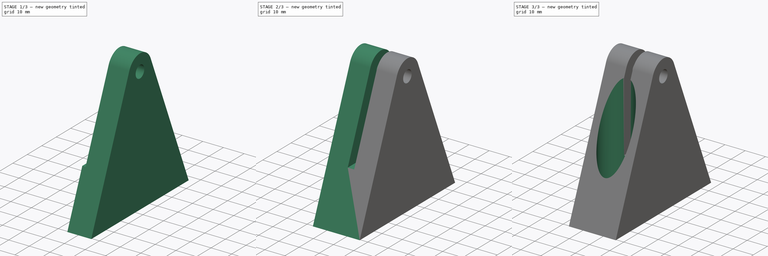
[diagram: build sequence overview — one tinted view per stage of 3, left to right]
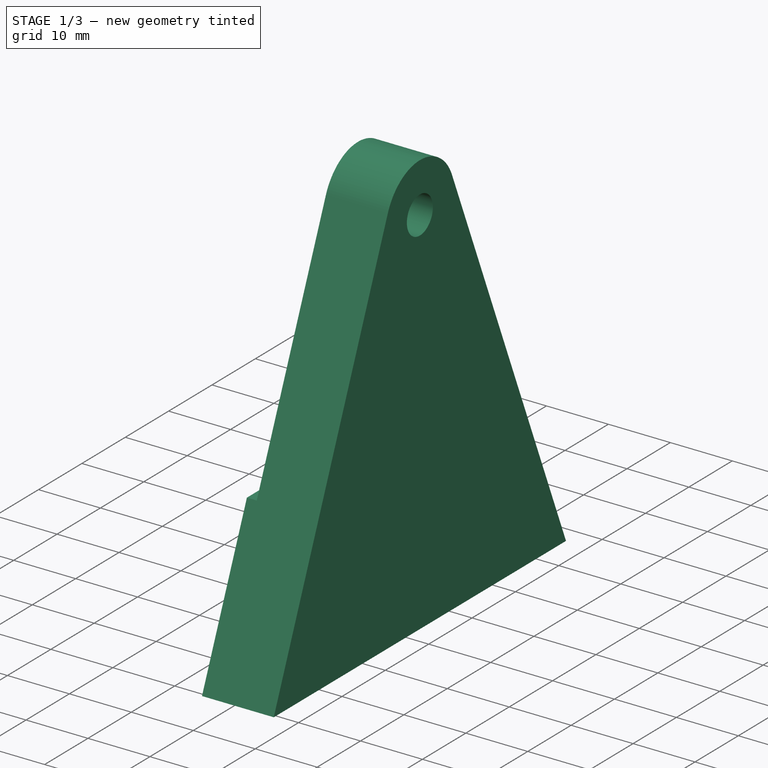
[diagram: stage 1 of 3 — iso view after this stage's code; geometry added in this stage tinted green]
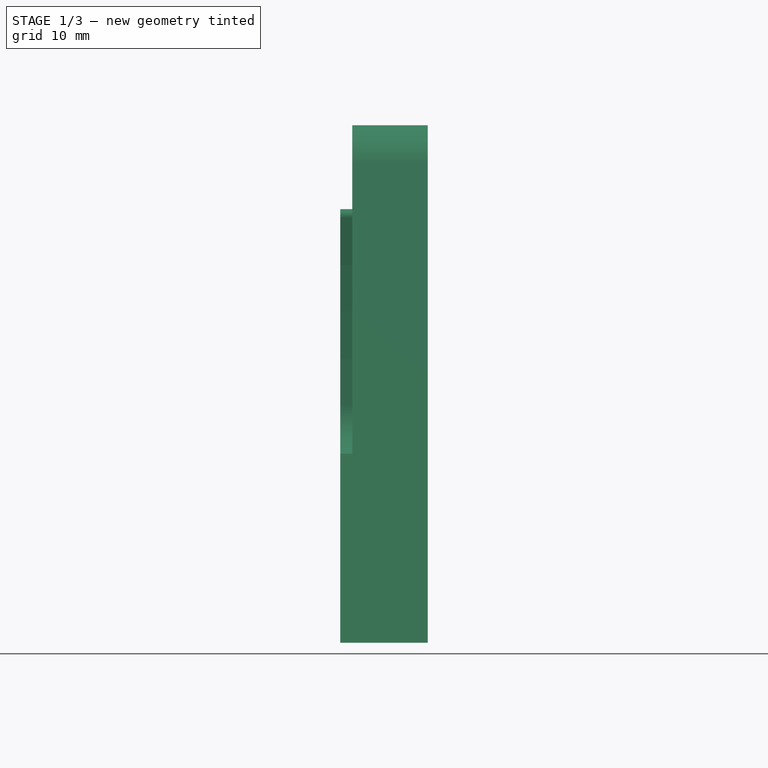
[diagram: stage 1 of 3 — front view after this stage's code; geometry added in this stage tinted green]
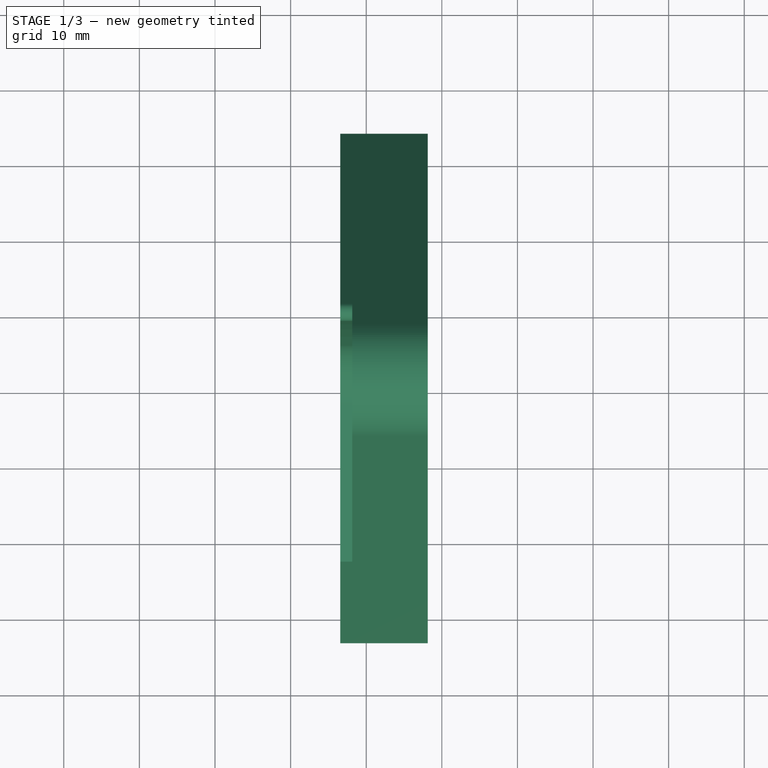
[diagram: stage 1 of 3 — top view after this stage's code; geometry added in this stage tinted green]
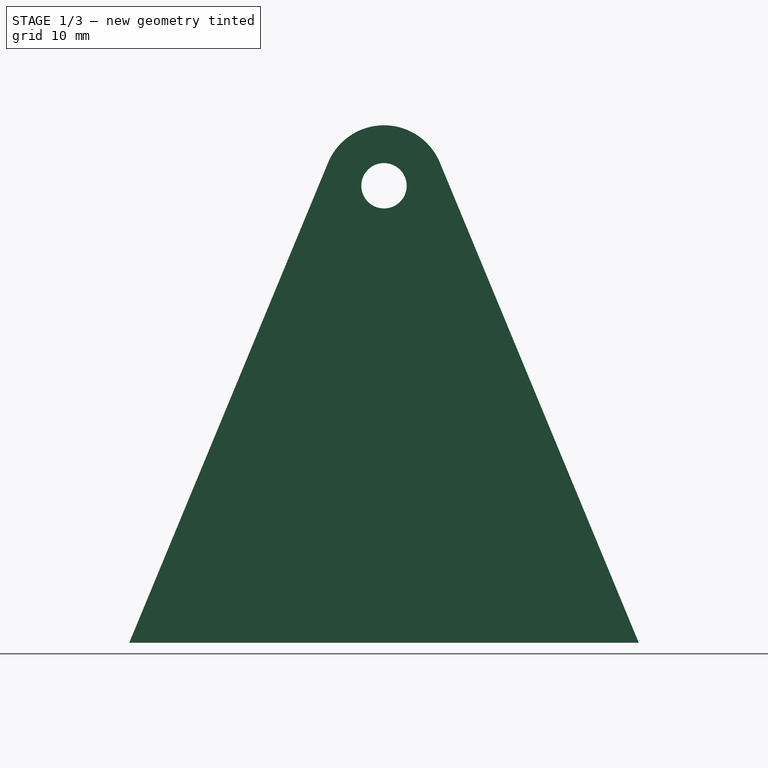
[diagram: stage 1 of 3 — right view after this stage's code; geometry added in this stage tinted green]
FCSTD DOCUMENT  (FreeCAD 1.0R38641 +468 (Git))
Label: mount_3d_printed
License: All rights reserved
LicenseURL: https://en.wikipedia.org/wiki/All_rights_reserved
objects: Sketcher::SketchObject×4, PartDesign::Pad×2, PartDesign::Pocket×2, PartDesign::SubShapeBinder×1, PartDesign::Plane×1, PartDesign::Mirrored×1, PartDesign::Body×1
note: 25 computed .brp shape members not serialized (recipe doc carries the construction recipe); baked Part::Feature solids carry a one-line shape summary decoded from their .brp
EXTERNAL_REF file=../frame_bracket.FCStd obj=Body
EXTERNAL_REF file=../dimensions.FCStd obj=VarSet

FEATURE [PartDesign::SubShapeBinder] Binder  label="FrameBracketBinder"
  BindCopyOnChange = 0
  BindMode = 0
  ClaimChildren = false
  Context = -> Body [Binder.]
  Fuse = false
  MakeFace = true
  OffsetFill = false
  OffsetIntersection = false
  OffsetJoinType = 0
  OffsetOpenResult = false
  PartialLoad = false
  Refine = true
  Relative = true
  Support = -> [<external ../frame_bracket.FCStd>#Body]
  _Version = 2
FEATURE [PartDesign::Plane] DatumPlane
  AttachmentSupport = -> [Binder]
  Length = 346.629
  MapMode = 45
  Placement = pos=(-3.4417,72.5692,-65.5158) rot=(0.680981,0.269315,0.680981;2.61545rad)
  ResizeMode = 0
  Width = 346.182
FEATURE [Sketcher::SketchObject] Sketch
  ArcFitTolerance = 1e-06
  AttachmentSupport = -> [Binder]
  ExternalGeometry = -> [Binder]
  FullyConstrained = true
  MakeInternals = false
  MapMode = 5
  Placement = pos=(-1.8542,0,0) rot=(0.57735,0.57735,0.57735;2.0944rad)
  expr: Constraints[13] = 2 * dimensions#VarSet.MaxAngle
  sketch-geometry (10):
    g0: LineSegment StartX=117.29 StartY=-159.135 StartZ=0 EndX=133.236 EndY=-120.639 EndZ=0
    g1: ArcOfCircle CenterX=140.627 CenterY=-123.7 CenterZ=0 NormalX=0 NormalY=0 NormalZ=1 AngleXU=0 Radius=8 StartAngle=0.392699 EndAngle=2.74889
    g2: LineSegment [constr] StartX=137.627 StartY=-123.7 StartZ=0 EndX=140.627 EndY=-123.7 EndZ=0
    g3: LineSegment [constr] StartX=117.29 StartY=-159.135 StartZ=0 EndX=163.964 EndY=-159.135 EndZ=0
    g4: LineSegment StartX=148.018 StartY=-120.639 StartZ=0 EndX=163.964 EndY=-159.135 EndZ=0
    g5: LineSegment [constr] StartX=140.627 StartY=-159.135 StartZ=0 EndX=140.627 EndY=-123.7 EndZ=0
    g6: Circle CenterX=140.627 CenterY=-123.7 CenterZ=0 NormalX=0 NormalY=0 NormalZ=1 AngleXU=0 Radius=3
    g7: LineSegment StartX=117.29 StartY=-159.135 StartZ=0 EndX=106.935 EndY=-184.135 EndZ=0
    g8: LineSegment StartX=163.964 StartY=-159.135 StartZ=0 EndX=174.319 EndY=-184.135 EndZ=0
    g9: LineSegment StartX=106.935 StartY=-184.135 StartZ=0 EndX=174.319 EndY=-184.135 EndZ=0
  constraints (24):
    c: Tangent(g1,g0) = 1.5708
    c: Coincident(g2,g1)
    c: Coincident(g1,g-3)
    c: Coincident(g3,g0)
    c: Tangent(g3,g-4)
    c: Equal(g1,g-6)
    c: Tangent(g4,g1) = 1.5708
    c: Coincident(g3,g4)
    c: Symmetric(g3,g3,g5)
    c: Coincident(g5,g1)
    c: Perpendicular(g2,g5)
    c: Perpendicular(g5,g3)
    c: Coincident(g2,g-3)
    c: Angle(g0,g4) = 0.785398
    c: Coincident(g6,g1)
    c: PointOnObject(g-3,g6)
    c: Coincident(g7,g0)
    c: Coincident(g8,g3)
    c: Coincident(g9,g7)
    c: Coincident(g9,g8)
    c: Parallel(g9,g3)
    c: Parallel(g7,g0)
    c: Parallel(g4,g8)
    c: Distance(g9,g3) = 25
FEATURE [PartDesign::Pad] Pad
  Direction = (1,0,0)
  Length = 10
  Length2 = 10
  Profile = -> Sketch
  ReferenceAxis = -> Sketch [N_Axis]
  Refine = true
  Suppressed = false
  Type = 0
FEATURE [Sketcher::SketchObject] Sketch004
  ArcFitTolerance = 1e-06
  ExternalGeometry = -> [Binder,Sketch]
  FullyConstrained = true
  MakeInternals = false
  MapMode = 5
  Placement = pos=(-1.8542,0,0) rot=(0.57735,-0.57735,-0.57735;2.0944rad)
  expr: Constraints[6] = dimensions#VarSet.EnclosureCornerRadius
  sketch-geometry (7):
    g0: ArcOfCircle CenterX=0 CenterY=-123.7 CenterZ=0 NormalX=0 NormalY=0 NormalZ=1 AngleXU=0 Radius=148.627 StartAngle=3.17025 EndAngle=3.33794
    g1: ArcOfCircle CenterX=-137.925 CenterY=-151.135 CenterZ=0 NormalX=0 NormalY=0 NormalZ=1 AngleXU=0 Radius=8 StartAngle=3.33794 EndAngle=4.71239
    g2: ArcOfCircle CenterX=-149.765 CenterY=-127.993 CenterZ=0 NormalX=0 NormalY=0 NormalZ=1 AngleXU=0 Radius=1.2 StartAngle=0.0286569 EndAngle=2.74889
    g3: LineSegment StartX=-137.925 StartY=-159.135 StartZ=0 EndX=-117.29 EndY=-159.135 EndZ=0
    g4: LineSegment StartX=-117.29 StartY=-159.135 StartZ=0 EndX=-106.935 EndY=-184.135 EndZ=0
    g5: LineSegment StartX=-106.935 StartY=-184.135 StartZ=0 EndX=-174.319 EndY=-184.135 EndZ=0
    g6: LineSegment StartX=-174.319 StartY=-184.135 StartZ=0 EndX=-150.874 EndY=-127.534 EndZ=0
  constraints (18):
    c: PointOnObject(g0,g-2)
    c: Coincident(g0,g-4)
    c: PointOnObject(g0,g-3)
    c: Coincident(g1,g0)
    c: Equal(g1,g-4)
    c: Tangent(g2,g0) = 1.5708
    c: Radius(g2) = 1.2
    c: Coincident(g3,g1)
    c: Coincident(g3,g-10)
    c: Horizontal(g3)
    c: Coincident(g4,g3)
    c: Coincident(g4,g-10)
    c: Coincident(g5,g4)
    c: Coincident(g5,g-9)
    c: Coincident(g6,g5)
    c: PointOnObject(g6,g-7)
    c: Tangent(g6,g2) = 1.5708
    c: PointOnObject(g1,g-4)
FEATURE [PartDesign::Pad] Pad004
  BaseFeature = -> Pad
  Direction = (-1,0,0)
  Length = 10
  Length2 = 10
  Profile = -> Sketch004
  ReferenceAxis = -> Sketch004 [N_Axis]
  Refine = true
  Suppressed = false
  Type = 3
  UpToFace = -> DatumPlane
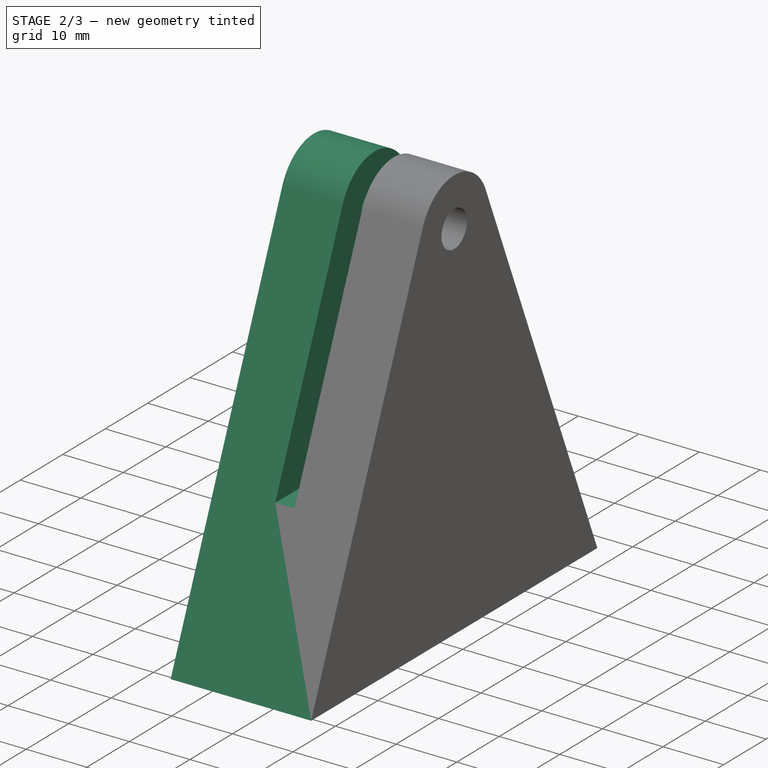
[diagram: stage 2 of 3 — iso view after this stage's code; geometry added in this stage tinted green]
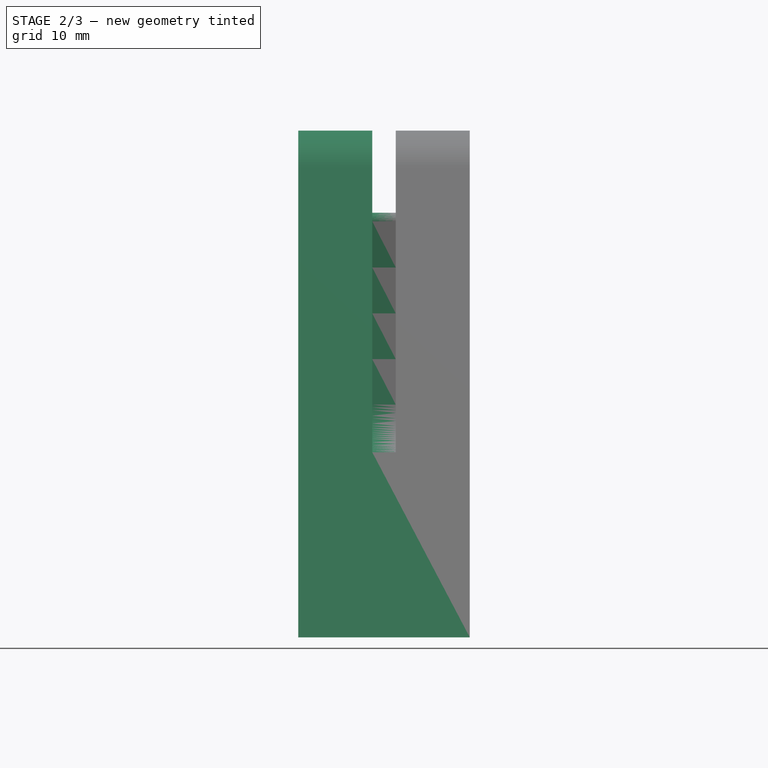
[diagram: stage 2 of 3 — front view after this stage's code; geometry added in this stage tinted green]
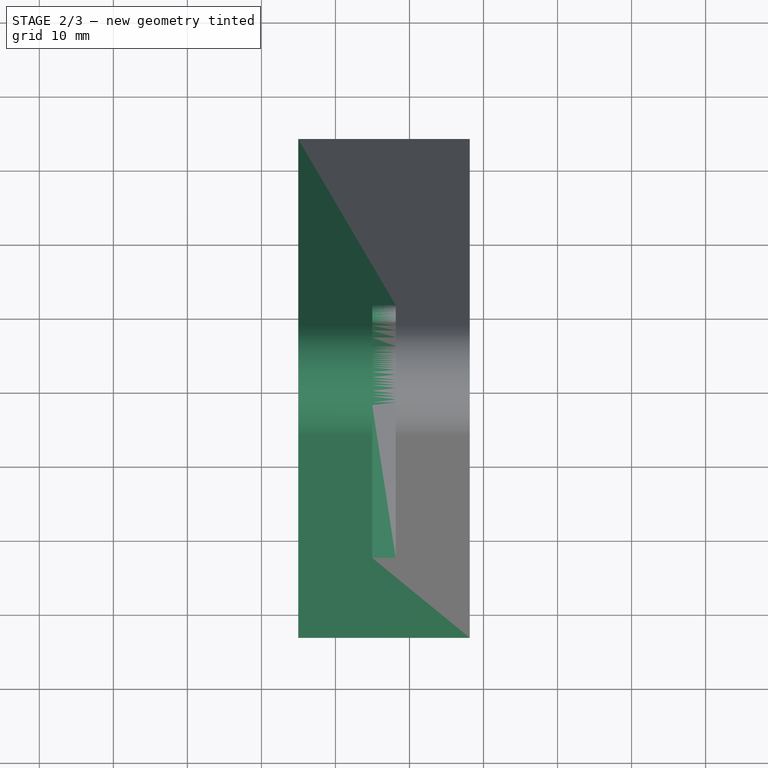
[diagram: stage 2 of 3 — top view after this stage's code; geometry added in this stage tinted green]
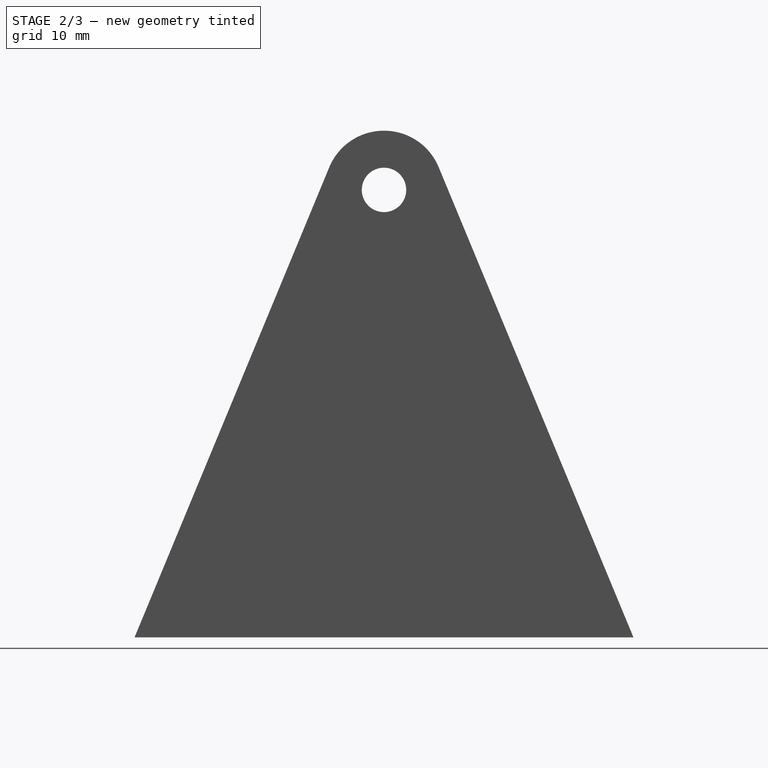
[diagram: stage 2 of 3 — right view after this stage's code; geometry added in this stage tinted green]
FEATURE [PartDesign::Mirrored] Mirrored
  BaseFeature = -> Pad004
  MirrorPlane = -> DatumPlane
  Originals = -> [Pad004]
  Refine = true
  Suppressed = false
  TransformMode = 1
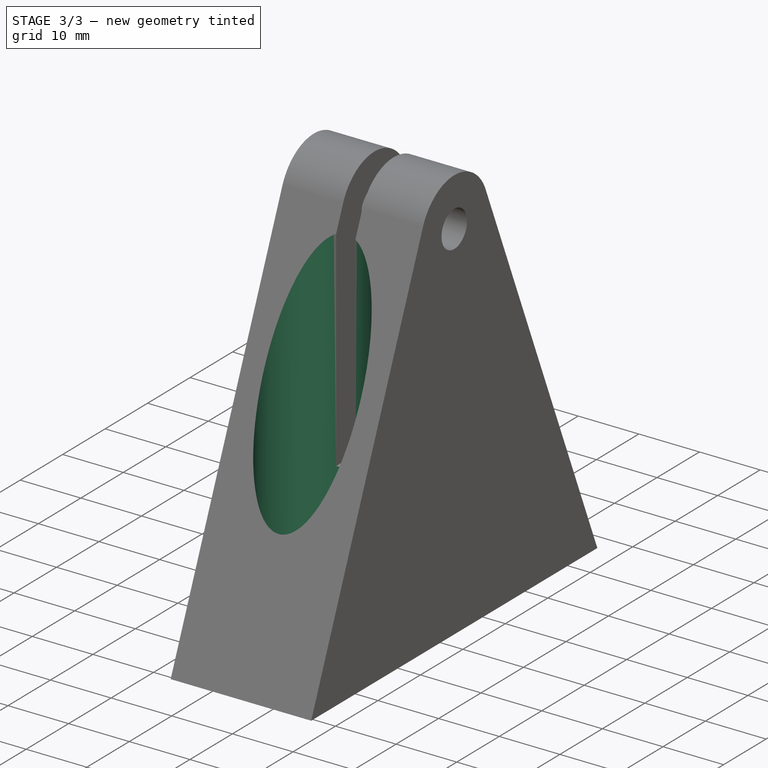
[diagram: stage 3 of 3 — iso view after this stage's code; geometry added in this stage tinted green]
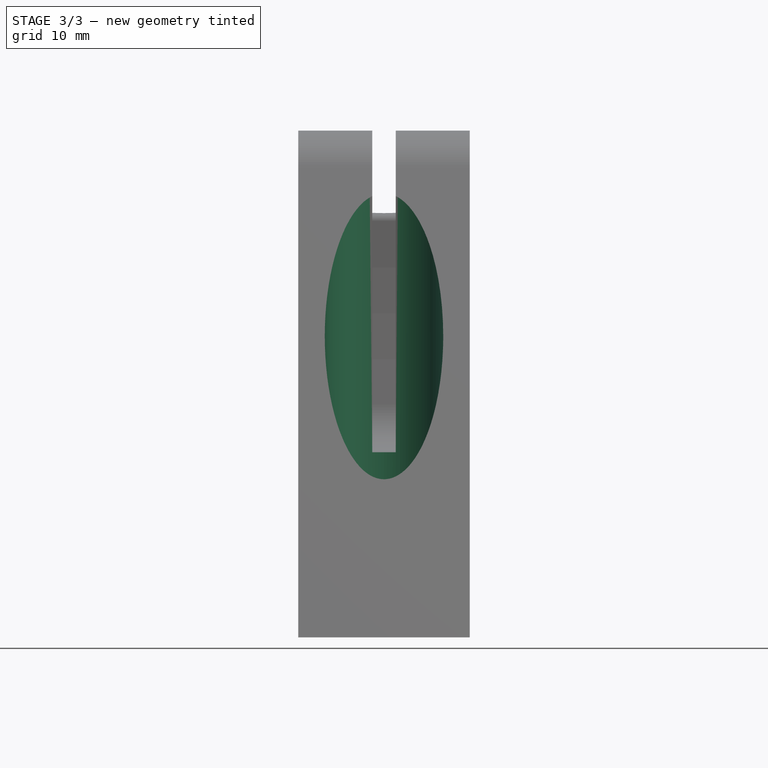
[diagram: stage 3 of 3 — front view after this stage's code; geometry added in this stage tinted green]
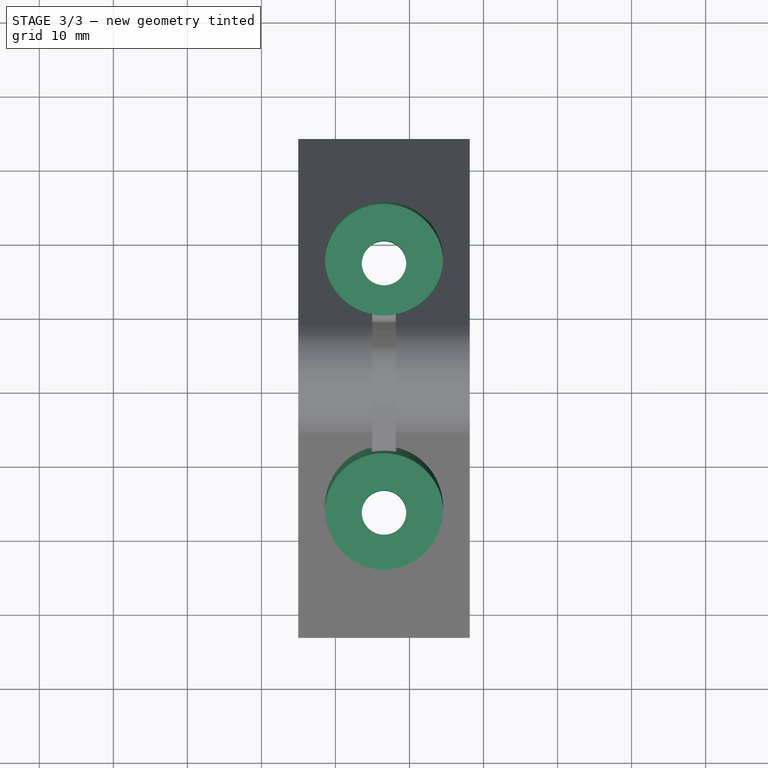
[diagram: stage 3 of 3 — top view after this stage's code; geometry added in this stage tinted green]
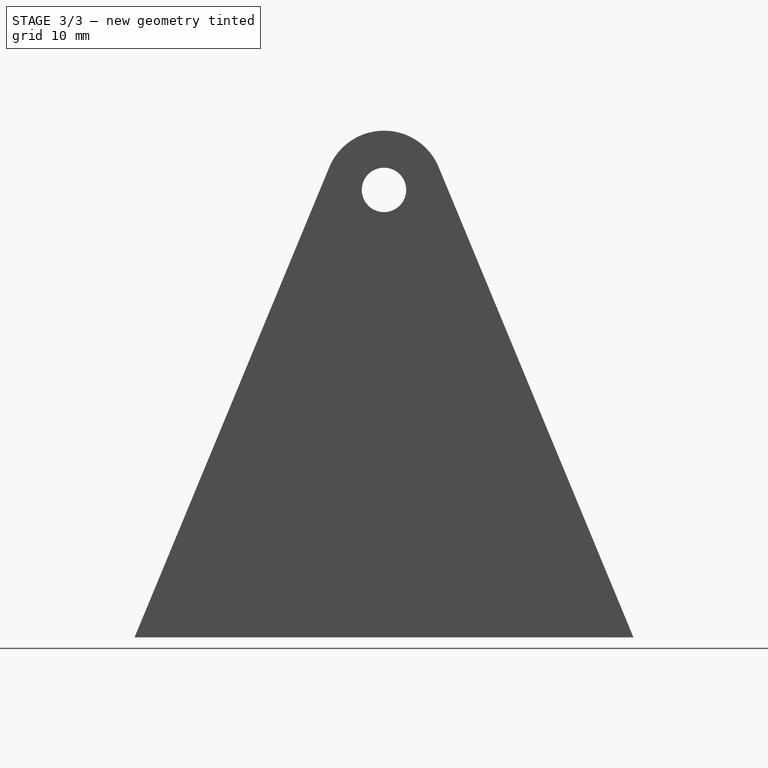
[diagram: stage 3 of 3 — right view after this stage's code; geometry added in this stage tinted green]
FEATURE [Sketcher::SketchObject] Sketch005
  ArcFitTolerance = 1e-06
  AttachmentSupport = -> [Mirrored]
  ExternalGeometry = -> [DatumPlane,Mirrored]
  FullyConstrained = true
  MakeInternals = false
  MapMode = 5
  Placement = pos=(0,4.1784e-11,-184.135) rot=(1,0,0;3.14159rad)
  expr: Constraints[2] = dimensions#VarSet.FrameHoleDiameter
  sketch-geometry (6):
    g0: Circle CenterX=-3.4417 CenterY=-123.781 CenterZ=0 NormalX=0 NormalY=0 NormalZ=1 AngleXU=0 Radius=3
    g1: Circle CenterX=-3.4417 CenterY=-157.473 CenterZ=0 NormalX=0 NormalY=0 NormalZ=1 AngleXU=0 Radius=3
    g2: LineSegment [constr] StartX=-3.4417 StartY=-123.781 StartZ=0 EndX=-3.4417 EndY=-106.935 EndZ=0
    g3: LineSegment [constr] StartX=-3.4417 StartY=-157.473 StartZ=0 EndX=-3.4417 EndY=-174.319 EndZ=0
    g4: LineSegment [constr] StartX=-3.4417 StartY=-123.781 StartZ=0 EndX=-3.4417 EndY=-140.627 EndZ=0
    g5: LineSegment [constr] StartX=-3.4417 StartY=-140.627 StartZ=0 EndX=-3.4417 EndY=-157.473 EndZ=0
  constraints (15):
    c: PointOnObject(g0,g-3)
    c: PointOnObject(g1,g-3)
    c: Diameter(g0) = 6
    c: Equal(g1,g0)
    c: Coincident(g2,g0)
    c: Symmetric(g-4,g-4,g2)
    c: Coincident(g3,g1)
    c: Symmetric(g-5,g-5,g3)
    c: Equal(g3,g2)
    c: Coincident(g4,g0)
    c: Coincident(g5,g4)
    c: Coincident(g5,g1)
    c: PointOnObject(g4,g-3)
    c: Equal(g4,g5)
    c: Equal(g4,g2)
FEATURE [PartDesign::Pocket] Pocket
  BaseFeature = -> Mirrored
  Direction = (0,-2.269e-13,1)
  Length = 5
  Length2 = 5
  Profile = -> Sketch005
  ReferenceAxis = -> Sketch005 [N_Axis]
  Refine = true
  Suppressed = false
  Type = 1
FEATURE [Sketcher::SketchObject] Sketch006
  ArcFitTolerance = 1e-06
  AttachmentOffset = pos=(0,0,-5) rot=(0,0,1;0rad)
  AttachmentSupport = -> [Pocket]
  ExternalGeometry = -> [Sketch005]
  FullyConstrained = true
  MakeInternals = false
  MapMode = 5
  Placement = pos=(0,4.06494e-11,-179.135) rot=(1,0,0;3.14159rad)
  expr: Constraints[2] = dimensions#VarSet.FrameHoleDiameter + dimensions#VarSet.FrameMinWidth
  sketch-geometry (2):
    g0: Circle CenterX=-3.4417 CenterY=-123.781 CenterZ=0 NormalX=0 NormalY=0 NormalZ=1 AngleXU=0 Radius=8
    g1: Circle CenterX=-3.4417 CenterY=-157.473 CenterZ=0 NormalX=0 NormalY=0 NormalZ=1 AngleXU=0 Radius=8
  constraints (4):
    c: Coincident(g0,g-3)
    c: Coincident(g1,g-4)
    c: Diameter(g1) = 16
    c: Equal(g0,g1)
FEATURE [PartDesign::Pocket] Pocket001
  BaseFeature = -> Pocket
  Direction = (0,-2.269e-13,1)
  Length = 5
  Length2 = 5
  Profile = -> Sketch006
  ReferenceAxis = -> Sketch006 [N_Axis]
  Refine = true
  Suppressed = false
  Type = 1
FEATURE [PartDesign::Body] Body  label="Mount"
  AllowCompound = false
  Group = -> [Binder,DatumPlane,Sketch,Pad,Sketch004,Pad004,Mirrored,Sketch005,Pocket,Sketch006,Pocket001]
  Origin = -> Origin
  Tip = -> Pocket001
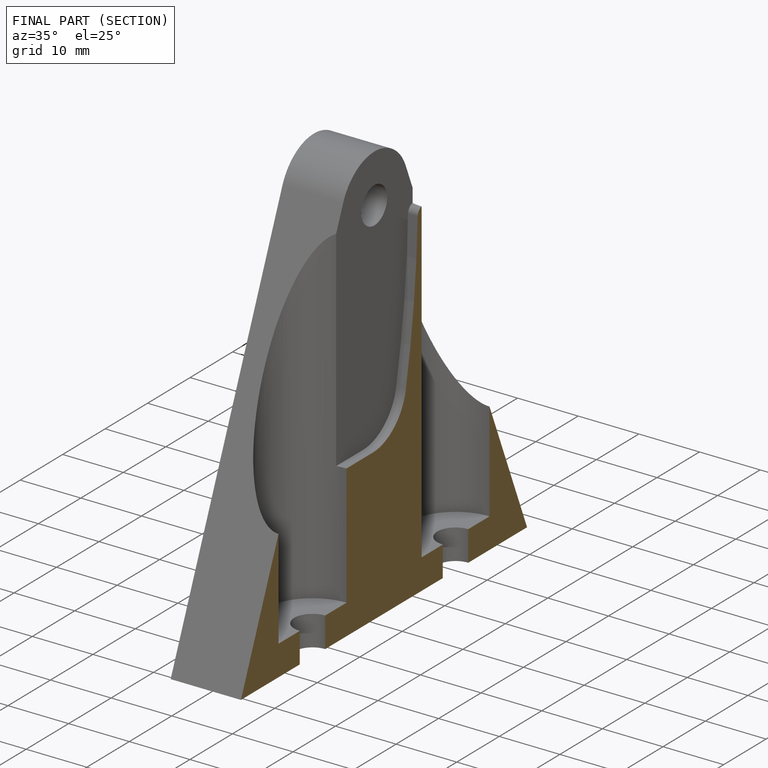
[diagram: finished part — half-section view (interior)]
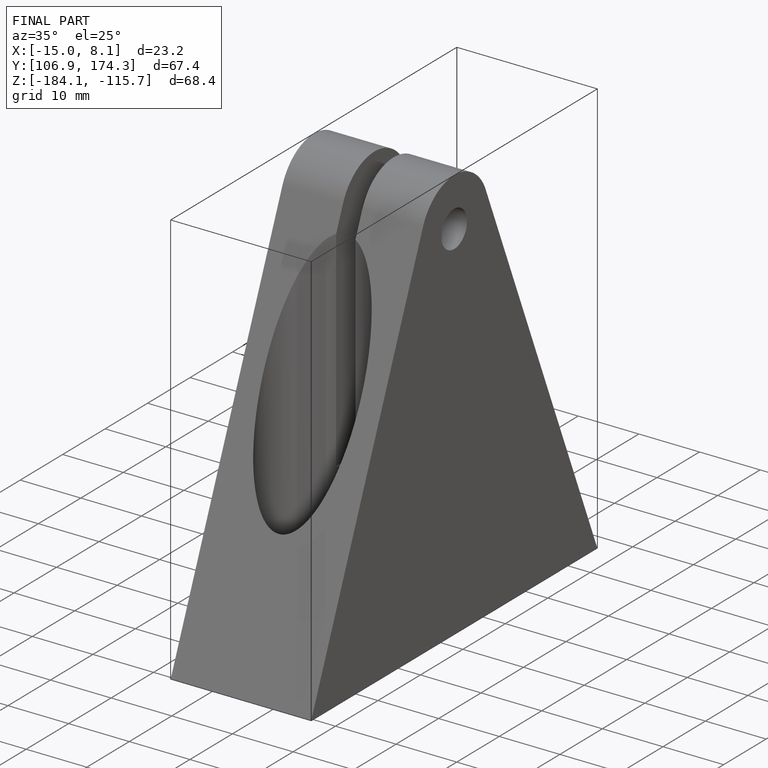
[diagram: finished part — iso view with bounding-box wireframe]
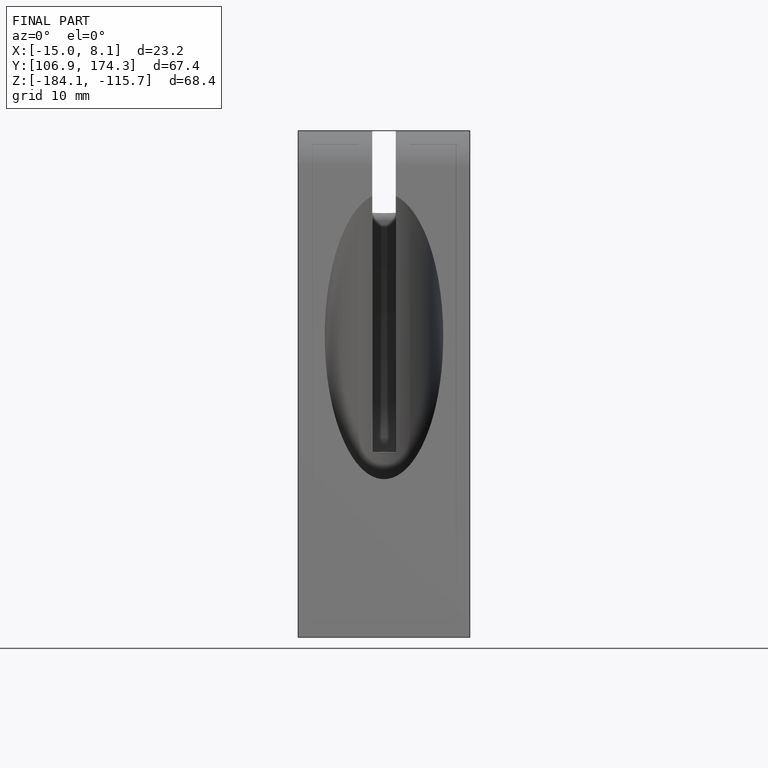
[diagram: finished part — front view with bounding-box wireframe]
